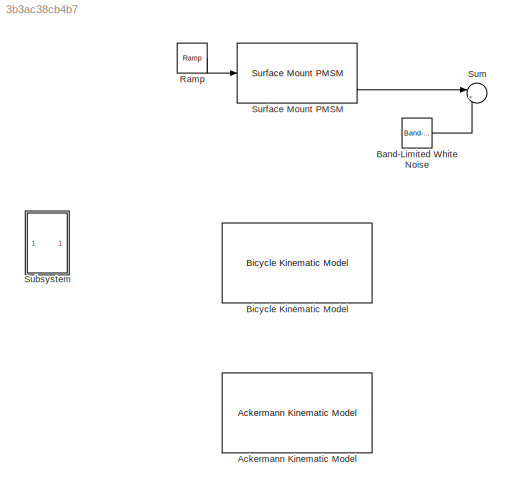
MODEL slx_3b3ac38cb4b7
KIND model
CONFIG AbsTol = auto
CONFIG EnableMultiTasking = off
CONFIG FixedStep = auto
CONFIG MaxStep = auto
CONFIG MinStep = auto
CONFIG RelTol = 1e-3
CONFIG SampleTimeConstraint = Unconstrained
CONFIG SolverName = VariableStepAuto
CONFIG StartTime = 0.0
CONFIG StopTime = 10.0
BLOCK [Reference] Ackermann Kinematic Model  REF=robotmobilelib/Ackermann Kinematic Model
  SourceBlock = robotmobilelib/Ackermann Kinematic Model
  SourceType = Ackermann Kinematic Model
BLOCK [Reference] Band-Limited White Noise  REF=simulink/Sources/Band-Limited
White Noise
  SourceBlock = simulink/Sources/Band-Limited\nWhite Noise
  SourceType = Band-Limited White Noise.
BLOCK [Reference] Bicycle Kinematic Model  REF=robotmobilelib/Bicycle Kinematic Model
  SourceBlock = robotmobilelib/Bicycle Kinematic Model
  SourceType = Bicycle Kinematic Model
BLOCK [Reference] Ramp  REF=simulink/Sources/Ramp
  SourceBlock = simulink/Sources/Ramp
  SourceType = Ramp
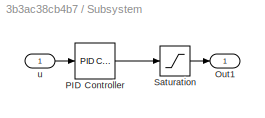
BLOCK [SubSystem] Subsystem
BLOCK [Outport] Subsystem/Out1
BLOCK [Reference] Subsystem/PID Controller  REF=slpidlib/PID Controller
  LibrarySourceBlock = simulink/Continuous/PID Controller
  SourceBlock = slpidlib/PID Controller
  SourceType = PID 1dof
BLOCK [Saturate] Subsystem/Saturation
  LowerLimit = -sat
  UpperLimit = sat
BLOCK [Inport] Subsystem/u
BLOCK [Sum] Sum
  Inputs = |++
BLOCK [Reference] Surface Mount PMSM  REF=autolibpmsmexterior/Surface Mount PMSM
  LibrarySourceBlock = mcblib/Electrical Systems/Motors/Surface Mount PMSM
  SourceBlock = autolibpmsmexterior/Surface Mount PMSM
  SourceType = Surface Mount PMSM
LINE Band-Limited White Noise:1 -> Sum:2
LINE Ramp:1 -> Surface Mount PMSM:1
LINE Subsystem/PID Controller:1 -> Subsystem/Saturation:1
LINE Subsystem/Saturation:1 -> Subsystem/Out1:1
LINE Subsystem/u:1 -> Subsystem/PID Controller:1
LINE Surface Mount PMSM:3 -> Sum:1
